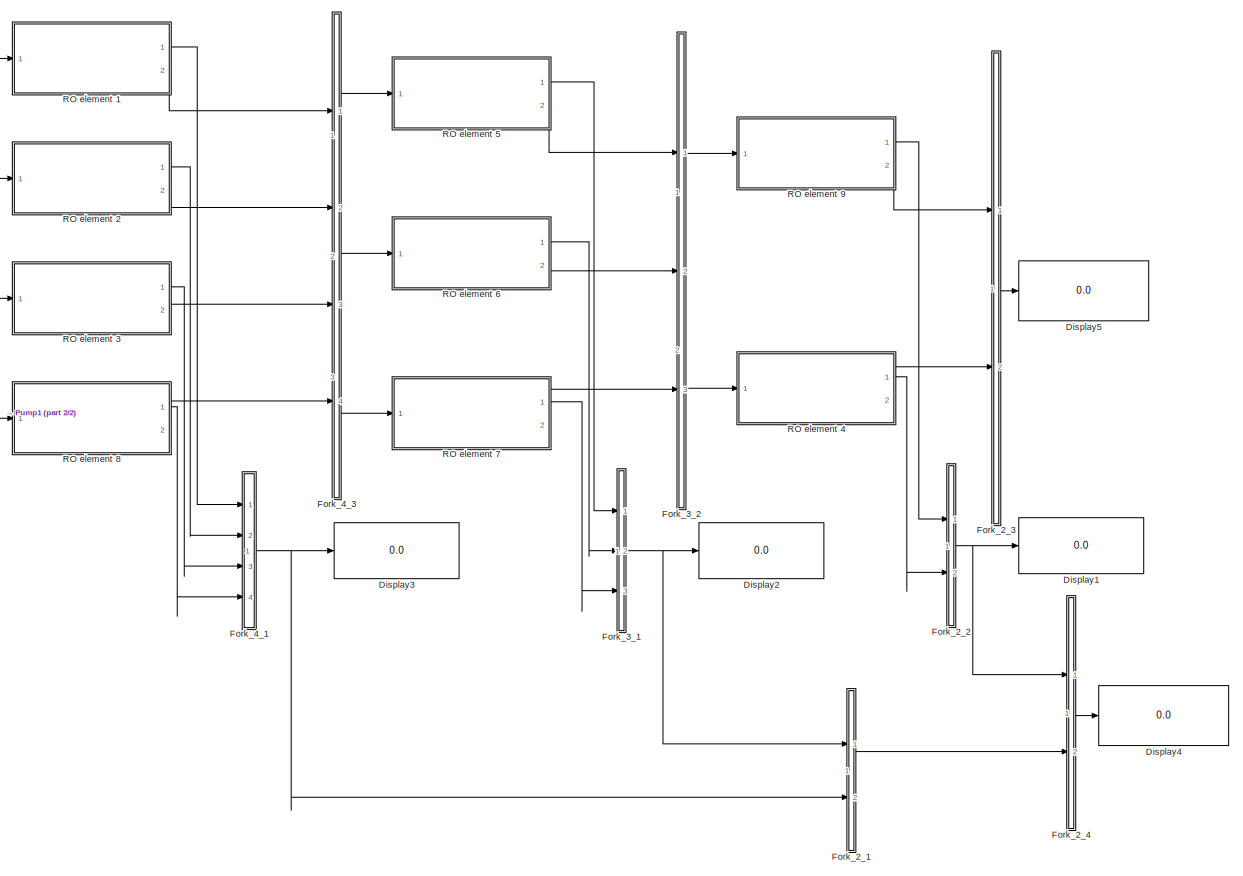
[diagram: root canvas - part 1/2, most of the canvas]
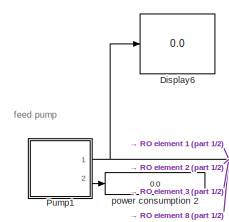
[diagram: root canvas - part 2/2, middle left region]
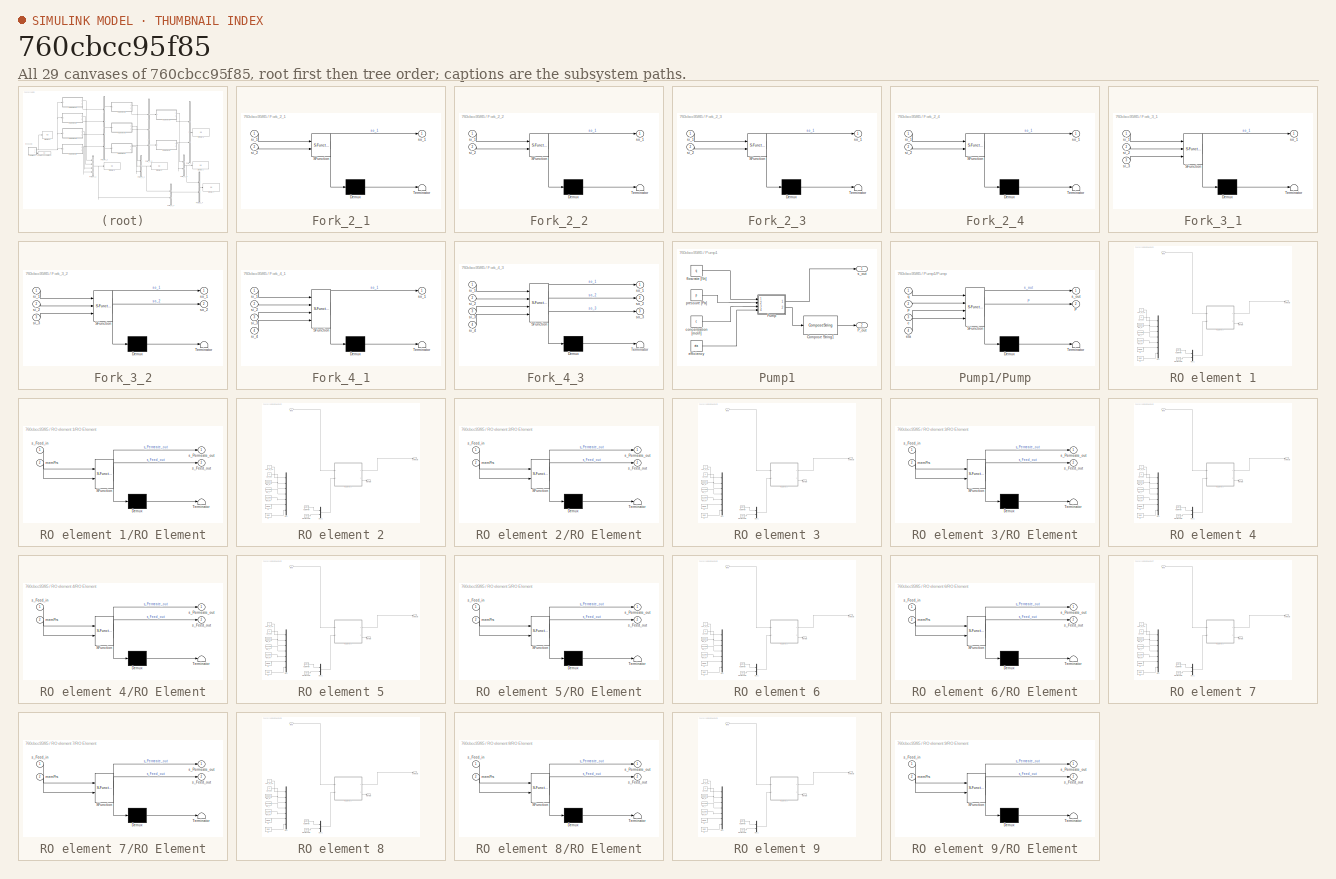
[diagram: thumbnail index - all 29 canvases of the model, root first then tree order]
MODEL slx_760cbcc95f85
KIND model
CONFIG AbsTol = auto
CONFIG EnableMultiTasking = off
CONFIG FixedStep = auto
CONFIG MaxStep = auto
CONFIG MinStep = auto
CONFIG RelTol = 1e-3
CONFIG SampleTimeConstraint = Unconstrained
CONFIG Solver = VariableStepAuto
CONFIG SolverName = VariableStepAuto
CONFIG StartTime = 0.0
CONFIG StopTime = 10.0
BLOCK [Display] Display1
  Decimation = 1
  Format = long
  Ports = [1]
BLOCK [Display] Display2
  Decimation = 1
  Format = long
  Ports = [1]
BLOCK [Display] Display3
  Decimation = 1
  Format = long
  Ports = [1]
BLOCK [Display] Display4
  Decimation = 1
  Format = long
  Ports = [1]
BLOCK [Display] Display5
  Decimation = 1
  Format = long
  Ports = [1]
BLOCK [Display] Display6
  Decimation = 1
  Ports = [1]
BLOCK [SubSystem] Fork_2_1
  ErrorFcn = Stateflow.Translate.translate
  PermitHierarchicalResolution = ExplicitOnly
  Ports = [2, 1]
  RequestExecContextInheritance = off
  SFBlockType = MATLAB Function
  TreatAsAtomicUnit = on
BLOCK [Demux] Fork_2_1/ Demux 
  Outputs = 1
  Ports = [1, 1]
BLOCK [S-Function] Fork_2_1/ SFunction 
  EnableBusSupport = on
  FunctionName = sf_sfun
  PortCounts = [2 2]
  Ports = [2, 2]
  SFcnIsStateOwnerBlock = off
  SFunctionDeploymentMode = off
  Tag = Stateflow S-Function ntw4_3_2 16
BLOCK [Terminator] Fork_2_1/ Terminator 
BLOCK [Inport] Fork_2_1/si_1
  IconDisplay = Port number
BLOCK [Inport] Fork_2_1/si_2
  IconDisplay = Port number
  Port = 2
BLOCK [Outport] Fork_2_1/so_1
  IconDisplay = Port number
BLOCK [SubSystem] Fork_2_2
  ErrorFcn = Stateflow.Translate.translate
  PermitHierarchicalResolution = ExplicitOnly
  Ports = [2, 1]
  RequestExecContextInheritance = off
  SFBlockType = MATLAB Function
  TreatAsAtomicUnit = on
BLOCK [Demux] Fork_2_2/ Demux 
  Outputs = 1
  Ports = [1, 1]
BLOCK [S-Function] Fork_2_2/ SFunction 
  EnableBusSupport = on
  FunctionName = sf_sfun
  PortCounts = [2 2]
  Ports = [2, 2]
  SFcnIsStateOwnerBlock = off
  SFunctionDeploymentMode = off
  Tag = Stateflow S-Function ntw4_3_2 17
BLOCK [Terminator] Fork_2_2/ Terminator 
BLOCK [Inport] Fork_2_2/si_1
  IconDisplay = Port number
BLOCK [Inport] Fork_2_2/si_2
  IconDisplay = Port number
  Port = 2
BLOCK [Outport] Fork_2_2/so_1
  IconDisplay = Port number
BLOCK [SubSystem] Fork_2_3
  ErrorFcn = Stateflow.Translate.translate
  PermitHierarchicalResolution = ExplicitOnly
  Ports = [2, 1]
  RequestExecContextInheritance = off
  SFBlockType = MATLAB Function
  TreatAsAtomicUnit = on
BLOCK [Demux] Fork_2_3/ Demux 
  Outputs = 1
  Ports = [1, 1]
BLOCK [S-Function] Fork_2_3/ SFunction 
  EnableBusSupport = on
  FunctionName = sf_sfun
  PortCounts = [2 2]
  Ports = [2, 2]
  SFcnIsStateOwnerBlock = off
  SFunctionDeploymentMode = off
  Tag = Stateflow S-Function ntw4_3_2 18
BLOCK [Terminator] Fork_2_3/ Terminator 
BLOCK [Inport] Fork_2_3/si_1
  IconDisplay = Port number
BLOCK [Inport] Fork_2_3/si_2
  IconDisplay = Port number
  Port = 2
BLOCK [Outport] Fork_2_3/so_1
  IconDisplay = Port number
BLOCK [SubSystem] Fork_2_4
  ErrorFcn = Stateflow.Translate.translate
  PermitHierarchicalResolution = ExplicitOnly
  Ports = [2, 1]
  RequestExecContextInheritance = off
  SFBlockType = MATLAB Function
  TreatAsAtomicUnit = on
BLOCK [Demux] Fork_2_4/ Demux 
  Outputs = 1
  Ports = [1, 1]
BLOCK [S-Function] Fork_2_4/ SFunction 
  EnableBusSupport = on
  FunctionName = sf_sfun
  PortCounts = [2 2]
  Ports = [2, 2]
  SFcnIsStateOwnerBlock = off
  SFunctionDeploymentMode = off
  Tag = Stateflow S-Function ntw4_3_2 19
BLOCK [Terminator] Fork_2_4/ Terminator 
BLOCK [Inport] Fork_2_4/si_1
  IconDisplay = Port number
BLOCK [Inport] Fork_2_4/si_2
  IconDisplay = Port number
  Port = 2
BLOCK [Outport] Fork_2_4/so_1
  IconDisplay = Port number
BLOCK [SubSystem] Fork_3_1
  ErrorFcn = Stateflow.Translate.translate
  PermitHierarchicalResolution = ExplicitOnly
  Ports = [3, 1]
  RequestExecContextInheritance = off
  SFBlockType = MATLAB Function
  TreatAsAtomicUnit = on
BLOCK [Demux] Fork_3_1/ Demux 
  Outputs = 1
  Ports = [1, 1]
BLOCK [S-Function] Fork_3_1/ SFunction 
  EnableBusSupport = on
  FunctionName = sf_sfun
  PortCounts = [3 2]
  Ports = [3, 2]
  SFcnIsStateOwnerBlock = off
  SFunctionDeploymentMode = off
  Tag = Stateflow S-Function ntw4_3_2 15
BLOCK [Terminator] Fork_3_1/ Terminator 
BLOCK [Inport] Fork_3_1/si_1
  IconDisplay = Port number
BLOCK [Inport] Fork_3_1/si_2
  IconDisplay = Port number
  Port = 2
BLOCK [Inport] Fork_3_1/si_3
  IconDisplay = Port number
  Port = 3
BLOCK [Outport] Fork_3_1/so_1
  IconDisplay = Port number
BLOCK [SubSystem] Fork_3_2
  ErrorFcn = Stateflow.Translate.translate
  PermitHierarchicalResolution = ExplicitOnly
  Ports = [3, 2]
  RequestExecContextInheritance = off
  SFBlockType = MATLAB Function
  TreatAsAtomicUnit = on
BLOCK [Demux] Fork_3_2/ Demux 
  Outputs = 1
  Ports = [1, 1]
BLOCK [S-Function] Fork_3_2/ SFunction 
  EnableBusSupport = on
  FunctionName = sf_sfun
  PortCounts = [3 3]
  Ports = [3, 3]
  SFcnIsStateOwnerBlock = off
  SFunctionDeploymentMode = off
  Tag = Stateflow S-Function ntw4_3_2 14
BLOCK [Terminator] Fork_3_2/ Terminator 
BLOCK [Inport] Fork_3_2/si_1
  IconDisplay = Port number
BLOCK [Inport] Fork_3_2/si_2
  IconDisplay = Port number
  Port = 2
BLOCK [Inport] Fork_3_2/si_3
  IconDisplay = Port number
  Port = 3
BLOCK [Outport] Fork_3_2/so_1
  IconDisplay = Port number
BLOCK [Outport] Fork_3_2/so_2
  IconDisplay = Port number
  Port = 2
BLOCK [SubSystem] Fork_4_1
  ErrorFcn = Stateflow.Translate.translate
  PermitHierarchicalResolution = ExplicitOnly
  Ports = [4, 1]
  RequestExecContextInheritance = off
  SFBlockType = MATLAB Function
  TreatAsAtomicUnit = on
BLOCK [Demux] Fork_4_1/ Demux 
  Outputs = 1
  Ports = [1, 1]
BLOCK [S-Function] Fork_4_1/ SFunction 
  EnableBusSupport = on
  FunctionName = sf_sfun
  PortCounts = [4 2]
  Ports = [4, 2]
  SFcnIsStateOwnerBlock = off
  SFunctionDeploymentMode = off
  Tag = Stateflow S-Function ntw4_3_2 8
BLOCK [Terminator] Fork_4_1/ Terminator 
BLOCK [Inport] Fork_4_1/si_1
  IconDisplay = Port number
BLOCK [Inport] Fork_4_1/si_2
  IconDisplay = Port number
  Port = 2
BLOCK [Inport] Fork_4_1/si_3
  IconDisplay = Port number
  Port = 3
BLOCK [Inport] Fork_4_1/si_4
  IconDisplay = Port number
  Port = 4
BLOCK [Outport] Fork_4_1/so_1
  IconDisplay = Port number
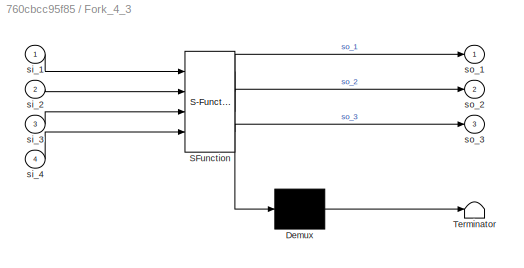
BLOCK [SubSystem] Fork_4_3 
  ErrorFcn = Stateflow.Translate.translate
  PermitHierarchicalResolution = ExplicitOnly
  Ports = [4, 3]
  RequestExecContextInheritance = off
  SFBlockType = MATLAB Function
  TreatAsAtomicUnit = on
BLOCK [Demux] Fork_4_3 / Demux 
  Outputs = 1
  Ports = [1, 1]
BLOCK [S-Function] Fork_4_3 / SFunction 
  EnableBusSupport = on
  FunctionName = sf_sfun
  PortCounts = [4 4]
  Ports = [4, 4]
  SFcnIsStateOwnerBlock = off
  SFunctionDeploymentMode = off
  Tag = Stateflow S-Function ntw4_3_2 9
BLOCK [Terminator] Fork_4_3 / Terminator 
BLOCK [Inport] Fork_4_3 /si_1
  IconDisplay = Port number
BLOCK [Inport] Fork_4_3 /si_2
  IconDisplay = Port number
  Port = 2
BLOCK [Inport] Fork_4_3 /si_3
  IconDisplay = Port number
  Port = 3
BLOCK [Inport] Fork_4_3 /si_4
  IconDisplay = Port number
  Port = 4
BLOCK [Outport] Fork_4_3 /so_1
  IconDisplay = Port number
BLOCK [Outport] Fork_4_3 /so_2
  IconDisplay = Port number
  Port = 2
BLOCK [Outport] Fork_4_3 /so_3
  IconDisplay = Port number
  Port = 3
BLOCK [SubSystem] Pump1
  Ports = [0, 2]
  RequestExecContextInheritance = off
BLOCK [ComposeString] Pump1/Compose String1
  Format = 'P = %.3f kW'
  Ports = [1, 1]
BLOCK [Outport] Pump1/P_out
  IconDisplay = Port number
  Port = 2
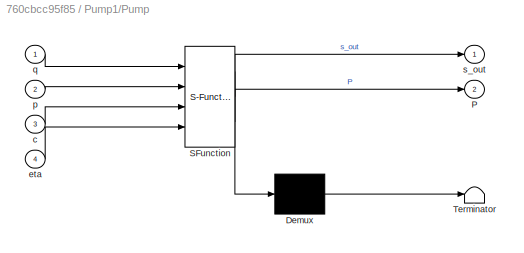
BLOCK [SubSystem] Pump1/Pump
  ErrorFcn = Stateflow.Translate.translate
  PermitHierarchicalResolution = ExplicitOnly
  Ports = [4, 2]
  RequestExecContextInheritance = off
  SFBlockType = MATLAB Function
  TreatAsAtomicUnit = on
BLOCK [Demux] Pump1/Pump/ Demux 
  Outputs = 1
  Ports = [1, 1]
BLOCK [S-Function] Pump1/Pump/ SFunction 
  EnableBusSupport = on
  FunctionName = sf_sfun
  PortCounts = [4 3]
  Ports = [4, 3]
  SFcnIsStateOwnerBlock = off
  SFunctionDeploymentMode = off
  Tag = Stateflow S-Function ntw4_3_2 3
BLOCK [Terminator] Pump1/Pump/ Terminator 
BLOCK [Outport] Pump1/Pump/P
  IconDisplay = Port number
  Port = 2
BLOCK [Inport] Pump1/Pump/c
  IconDisplay = Port number
  Port = 3
BLOCK [Inport] Pump1/Pump/eta
  IconDisplay = Port number
  Port = 4
BLOCK [Inport] Pump1/Pump/p
  IconDisplay = Port number
  Port = 2
BLOCK [Inport] Pump1/Pump/q
  IconDisplay = Port number
BLOCK [Outport] Pump1/Pump/s_out
  IconDisplay = Port number
BLOCK [Constant] Pump1/concentration [mol//l]
  Value = c
BLOCK [Constant] Pump1/efficiency
  Value = eta
BLOCK [Constant] Pump1/flow rate [l\h]
  Value = q
BLOCK [Constant] Pump1/pressure [Pa]
  Value = p
BLOCK [Outport] Pump1/s_out
  IconDisplay = Port number
BLOCK [SubSystem] RO element 1
  Ports = [1, 2]
  RequestExecContextInheritance = off
BLOCK [Mux] RO element 1/Mux
  Commented = on
  DisplayOption = bar
  Inputs = 7
  Ports = [7, 1]
BLOCK [Mux] RO element 1/Mux1
  DisplayOption = bar
  Inputs = 2
  Ports = [2, 1]
BLOCK [SubSystem] RO element 1/RO Element
  ErrorFcn = Stateflow.Translate.translate
  PermitHierarchicalResolution = ExplicitOnly
  Ports = [2, 2]
  RequestExecContextInheritance = off
  SFBlockType = MATLAB Function
  TreatAsAtomicUnit = on
BLOCK [Demux] RO element 1/RO Element/ Demux 
  Outputs = 1
  Ports = [1, 1]
BLOCK [S-Function] RO element 1/RO Element/ SFunction 
  EnableBusSupport = on
  FunctionName = sf_sfun
  PortCounts = [2 3]
  Ports = [2, 3]
  SFcnIsStateOwnerBlock = off
  SFunctionDeploymentMode = off
  Tag = Stateflow S-Function ntw4_3_2 1
BLOCK [Terminator] RO element 1/RO Element/ Terminator 
BLOCK [Inport] RO element 1/RO Element/memPrs
  IconDisplay = Port number
  Port = 2
BLOCK [Inport] RO element 1/RO Element/s_Feed_in
  IconDisplay = Port number
BLOCK [Outport] RO element 1/RO Element/s_Feed_out
  IconDisplay = Port number
  Port = 2
BLOCK [Outport] RO element 1/RO Element/s_Permeate_out
  IconDisplay = Port number
BLOCK [Inport] RO element 1/feed
  IconDisplay = Port number
BLOCK [Constant] RO element 1/np_sht
  Commented = on
  Value = 20
BLOCK [Outport] RO element 1/permeate
  IconDisplay = Port number
BLOCK [Constant] RO element 1/r1
  Commented = on
  Value = 2.5e-2
BLOCK [Constant] RO element 1/r2
  Commented = on
  Value = 9e-2
BLOCK [Constant] RO element 1/rejectionRate
  Value = Value
BLOCK [Outport] RO element 1/retentate
  IconDisplay = Port number
  Port = 2
BLOCK [Constant] RO element 1/spc_d_uc
  Commented = on
  Value = 3
BLOCK [Constant] RO element 1/thk_f
  Commented = on
  Value = 0.711e-3
BLOCK [Constant] RO element 1/thk_m
  Commented = on
  Value = 0.11e-3
BLOCK [Constant] RO element 1/thk_p
  Commented = on
  Value = 0.25e-3
BLOCK [Constant] RO element 1/waterPerm
  Value = waterPerm
BLOCK [SubSystem] RO element 2
  Ports = [1, 2]
  RequestExecContextInheritance = off
BLOCK [Mux] RO element 2/Mux
  Commented = on
  DisplayOption = bar
  Inputs = 7
  Ports = [7, 1]
BLOCK [Mux] RO element 2/Mux1
  DisplayOption = bar
  Inputs = 2
  Ports = [2, 1]
BLOCK [SubSystem] RO element 2/RO Element
  ErrorFcn = Stateflow.Translate.translate
  PermitHierarchicalResolution = ExplicitOnly
  Ports = [2, 2]
  RequestExecContextInheritance = off
  SFBlockType = MATLAB Function
  TreatAsAtomicUnit = on
BLOCK [Demux] RO element 2/RO Element/ Demux 
  Outputs = 1
  Ports = [1, 1]
BLOCK [S-Function] RO element 2/RO Element/ SFunction 
  EnableBusSupport = on
  FunctionName = sf_sfun
  PortCounts = [2 3]
  Ports = [2, 3]
  SFcnIsStateOwnerBlock = off
  SFunctionDeploymentMode = off
  Tag = Stateflow S-Function ntw4_3_2 2
BLOCK [Terminator] RO element 2/RO Element/ Terminator 
BLOCK [Inport] RO element 2/RO Element/memPrs
  IconDisplay = Port number
  Port = 2
BLOCK [Inport] RO element 2/RO Element/s_Feed_in
  IconDisplay = Port number
BLOCK [Outport] RO element 2/RO Element/s_Feed_out
  IconDisplay = Port number
  Port = 2
BLOCK [Outport] RO element 2/RO Element/s_Permeate_out
  IconDisplay = Port number
BLOCK [Inport] RO element 2/feed
  IconDisplay = Port number
BLOCK [Constant] RO element 2/np_sht
  Commented = on
  Value = 20
BLOCK [Outport] RO element 2/permeate
  IconDisplay = Port number
BLOCK [Constant] RO element 2/r1
  Commented = on
  Value = 2.5e-2
BLOCK [Constant] RO element 2/r2
  Commented = on
  Value = 9e-2
BLOCK [Constant] RO element 2/rejectionRate
  Value = Value
BLOCK [Outport] RO element 2/retentate
  IconDisplay = Port number
  Port = 2
BLOCK [Constant] RO element 2/spc_d_uc
  Commented = on
  Value = 3
BLOCK [Constant] RO element 2/thk_f
  Commented = on
  Value = 0.711e-3
BLOCK [Constant] RO element 2/thk_m
  Commented = on
  Value = 0.11e-3
BLOCK [Constant] RO element 2/thk_p
  Commented = on
  Value = 0.25e-3
BLOCK [Constant] RO element 2/waterPerm
  Value = waterPerm
BLOCK [SubSystem] RO element 3
  Ports = [1, 2]
  RequestExecContextInheritance = off
BLOCK [Mux] RO element 3/Mux
  Commented = on
  DisplayOption = bar
  Inputs = 7
  Ports = [7, 1]
BLOCK [Mux] RO element 3/Mux1
  DisplayOption = bar
  Inputs = 2
  Ports = [2, 1]
BLOCK [SubSystem] RO element 3/RO Element
  ErrorFcn = Stateflow.Translate.translate
  PermitHierarchicalResolution = ExplicitOnly
  Ports = [2, 2]
  RequestExecContextInheritance = off
  SFBlockType = MATLAB Function
  TreatAsAtomicUnit = on
BLOCK [Demux] RO element 3/RO Element/ Demux 
  Outputs = 1
  Ports = [1, 1]
BLOCK [S-Function] RO element 3/RO Element/ SFunction 
  EnableBusSupport = on
  FunctionName = sf_sfun
  PortCounts = [2 3]
  Ports = [2, 3]
  SFcnIsStateOwnerBlock = off
  SFunctionDeploymentMode = off
  Tag = Stateflow S-Function ntw4_3_2 4
BLOCK [Terminator] RO element 3/RO Element/ Terminator 
BLOCK [Inport] RO element 3/RO Element/memPrs
  IconDisplay = Port number
  Port = 2
BLOCK [Inport] RO element 3/RO Element/s_Feed_in
  IconDisplay = Port number
BLOCK [Outport] RO element 3/RO Element/s_Feed_out
  IconDisplay = Port number
  Port = 2
BLOCK [Outport] RO element 3/RO Element/s_Permeate_out
  IconDisplay = Port number
BLOCK [Inport] RO element 3/feed
  IconDisplay = Port number
BLOCK [Constant] RO element 3/np_sht
  Commented = on
  Value = 20
BLOCK [Outport] RO element 3/permeate
  IconDisplay = Port number
BLOCK [Constant] RO element 3/r1
  Commented = on
  Value = 2.5e-2
BLOCK [Constant] RO element 3/r2
  Commented = on
  Value = 9e-2
BLOCK [Constant] RO element 3/rejectionRate
  Value = Value
BLOCK [Outport] RO element 3/retentate
  IconDisplay = Port number
  Port = 2
BLOCK [Constant] RO element 3/spc_d_uc
  Commented = on
  Value = 3
BLOCK [Constant] RO element 3/thk_f
  Commented = on
  Value = 0.711e-3
BLOCK [Constant] RO element 3/thk_m
  Commented = on
  Value = 0.11e-3
BLOCK [Constant] RO element 3/thk_p
  Commented = on
  Value = 0.25e-3
BLOCK [Constant] RO element 3/waterPerm
  Value = waterPerm
BLOCK [SubSystem] RO element 4
  Ports = [1, 2]
  RequestExecContextInheritance = off
BLOCK [Mux] RO element 4/Mux
  Commented = on
  DisplayOption = bar
  Inputs = 7
  Ports = [7, 1]
BLOCK [Mux] RO element 4/Mux1
  DisplayOption = bar
  Inputs = 2
  Ports = [2, 1]
BLOCK [SubSystem] RO element 4/RO Element
  ErrorFcn = Stateflow.Translate.translate
  PermitHierarchicalResolution = ExplicitOnly
  Ports = [2, 2]
  RequestExecContextInheritance = off
  SFBlockType = MATLAB Function
  TreatAsAtomicUnit = on
BLOCK [Demux] RO element 4/RO Element/ Demux 
  Outputs = 1
  Ports = [1, 1]
BLOCK [S-Function] RO element 4/RO Element/ SFunction 
  EnableBusSupport = on
  FunctionName = sf_sfun
  PortCounts = [2 3]
  Ports = [2, 3]
  SFcnIsStateOwnerBlock = off
  SFunctionDeploymentMode = off
  Tag = Stateflow S-Function ntw4_3_2 7
BLOCK [Terminator] RO element 4/RO Element/ Terminator 
BLOCK [Inport] RO element 4/RO Element/memPrs
  IconDisplay = Port number
  Port = 2
BLOCK [Inport] RO element 4/RO Element/s_Feed_in
  IconDisplay = Port number
BLOCK [Outport] RO element 4/RO Element/s_Feed_out
  IconDisplay = Port number
  Port = 2
BLOCK [Outport] RO element 4/RO Element/s_Permeate_out
  IconDisplay = Port number
BLOCK [Inport] RO element 4/feed
  IconDisplay = Port number
BLOCK [Constant] RO element 4/np_sht
  Commented = on
  Value = 20
BLOCK [Outport] RO element 4/permeate
  IconDisplay = Port number
BLOCK [Constant] RO element 4/r1
  Commented = on
  Value = 2.5e-2
BLOCK [Constant] RO element 4/r2
  Commented = on
  Value = 9e-2
BLOCK [Constant] RO element 4/rejectionRate
  Value = Value
BLOCK [Outport] RO element 4/retentate
  IconDisplay = Port number
  Port = 2
BLOCK [Constant] RO element 4/spc_d_uc
  Commented = on
  Value = 3
BLOCK [Constant] RO element 4/thk_f
  Commented = on
  Value = 0.711e-3
BLOCK [Constant] RO element 4/thk_m
  Commented = on
  Value = 0.11e-3
BLOCK [Constant] RO element 4/thk_p
  Commented = on
  Value = 0.25e-3
BLOCK [Constant] RO element 4/waterPerm
  Value = waterPerm
BLOCK [SubSystem] RO element 5
  Ports = [1, 2]
  RequestExecContextInheritance = off
BLOCK [Mux] RO element 5/Mux
  Commented = on
  DisplayOption = bar
  Inputs = 7
  Ports = [7, 1]
BLOCK [Mux] RO element 5/Mux1
  DisplayOption = bar
  Inputs = 2
  Ports = [2, 1]
BLOCK [SubSystem] RO element 5/RO Element
  ErrorFcn = Stateflow.Translate.translate
  PermitHierarchicalResolution = ExplicitOnly
  Ports = [2, 2]
  RequestExecContextInheritance = off
  SFBlockType = MATLAB Function
  TreatAsAtomicUnit = on
BLOCK [Demux] RO element 5/RO Element/ Demux 
  Outputs = 1
  Ports = [1, 1]
BLOCK [S-Function] RO element 5/RO Element/ SFunction 
  EnableBusSupport = on
  FunctionName = sf_sfun
  PortCounts = [2 3]
  Ports = [2, 3]
  SFcnIsStateOwnerBlock = off
  SFunctionDeploymentMode = off
  Tag = Stateflow S-Function ntw4_3_2 10
BLOCK [Terminator] RO element 5/RO Element/ Terminator 
BLOCK [Inport] RO element 5/RO Element/memPrs
  IconDisplay = Port number
  Port = 2
BLOCK [Inport] RO element 5/RO Element/s_Feed_in
  IconDisplay = Port number
BLOCK [Outport] RO element 5/RO Element/s_Feed_out
  IconDisplay = Port number
  Port = 2
BLOCK [Outport] RO element 5/RO Element/s_Permeate_out
  IconDisplay = Port number
BLOCK [Inport] RO element 5/feed
  IconDisplay = Port number
BLOCK [Constant] RO element 5/np_sht
  Commented = on
  Value = 20
BLOCK [Outport] RO element 5/permeate
  IconDisplay = Port number
BLOCK [Constant] RO element 5/r1
  Commented = on
  Value = 2.5e-2
BLOCK [Constant] RO element 5/r2
  Commented = on
  Value = 9e-2
BLOCK [Constant] RO element 5/rejectionRate
  Value = Value
BLOCK [Outport] RO element 5/retentate
  IconDisplay = Port number
  Port = 2
BLOCK [Constant] RO element 5/spc_d_uc
  Commented = on
  Value = 3
BLOCK [Constant] RO element 5/thk_f
  Commented = on
  Value = 0.711e-3
BLOCK [Constant] RO element 5/thk_m
  Commented = on
  Value = 0.11e-3
BLOCK [Constant] RO element 5/thk_p
  Commented = on
  Value = 0.25e-3
BLOCK [Constant] RO element 5/waterPerm
  Value = waterPerm
BLOCK [SubSystem] RO element 6
  Ports = [1, 2]
  RequestExecContextInheritance = off
BLOCK [Mux] RO element 6/Mux
  Commented = on
  DisplayOption = bar
  Inputs = 7
  Ports = [7, 1]
BLOCK [Mux] RO element 6/Mux1
  DisplayOption = bar
  Inputs = 2
  Ports = [2, 1]
BLOCK [SubSystem] RO element 6/RO Element
  ErrorFcn = Stateflow.Translate.translate
  PermitHierarchicalResolution = ExplicitOnly
  Ports = [2, 2]
  RequestExecContextInheritance = off
  SFBlockType = MATLAB Function
  TreatAsAtomicUnit = on
BLOCK [Demux] RO element 6/RO Element/ Demux 
  Outputs = 1
  Ports = [1, 1]
BLOCK [S-Function] RO element 6/RO Element/ SFunction 
  EnableBusSupport = on
  FunctionName = sf_sfun
  PortCounts = [2 3]
  Ports = [2, 3]
  SFcnIsStateOwnerBlock = off
  SFunctionDeploymentMode = off
  Tag = Stateflow S-Function ntw4_3_2 11
BLOCK [Terminator] RO element 6/RO Element/ Terminator 
BLOCK [Inport] RO element 6/RO Element/memPrs
  IconDisplay = Port number
  Port = 2
BLOCK [Inport] RO element 6/RO Element/s_Feed_in
  IconDisplay = Port number
BLOCK [Outport] RO element 6/RO Element/s_Feed_out
  IconDisplay = Port number
  Port = 2
BLOCK [Outport] RO element 6/RO Element/s_Permeate_out
  IconDisplay = Port number
BLOCK [Inport] RO element 6/feed
  IconDisplay = Port number
BLOCK [Constant] RO element 6/np_sht
  Commented = on
  Value = 20
BLOCK [Outport] RO element 6/permeate
  IconDisplay = Port number
BLOCK [Constant] RO element 6/r1
  Commented = on
  Value = 2.5e-2
BLOCK [Constant] RO element 6/r2
  Commented = on
  Value = 9e-2
BLOCK [Constant] RO element 6/rejectionRate
  Value = Value
BLOCK [Outport] RO element 6/retentate
  IconDisplay = Port number
  Port = 2
BLOCK [Constant] RO element 6/spc_d_uc
  Commented = on
  Value = 3
BLOCK [Constant] RO element 6/thk_f
  Commented = on
  Value = 0.711e-3
BLOCK [Constant] RO element 6/thk_m
  Commented = on
  Value = 0.11e-3
BLOCK [Constant] RO element 6/thk_p
  Commented = on
  Value = 0.25e-3
BLOCK [Constant] RO element 6/waterPerm
  Value = waterPerm
BLOCK [SubSystem] RO element 7
  Ports = [1, 2]
  RequestExecContextInheritance = off
BLOCK [Mux] RO element 7/Mux
  Commented = on
  DisplayOption = bar
  Inputs = 7
  Ports = [7, 1]
BLOCK [Mux] RO element 7/Mux1
  DisplayOption = bar
  Inputs = 2
  Ports = [2, 1]
BLOCK [SubSystem] RO element 7/RO Element
  ErrorFcn = Stateflow.Translate.translate
  PermitHierarchicalResolution = ExplicitOnly
  Ports = [2, 2]
  RequestExecContextInheritance = off
  SFBlockType = MATLAB Function
  TreatAsAtomicUnit = on
BLOCK [Demux] RO element 7/RO Element/ Demux 
  Outputs = 1
  Ports = [1, 1]
BLOCK [S-Function] RO element 7/RO Element/ SFunction 
  EnableBusSupport = on
  FunctionName = sf_sfun
  PortCounts = [2 3]
  Ports = [2, 3]
  SFcnIsStateOwnerBlock = off
  SFunctionDeploymentMode = off
  Tag = Stateflow S-Function ntw4_3_2 12
BLOCK [Terminator] RO element 7/RO Element/ Terminator 
BLOCK [Inport] RO element 7/RO Element/memPrs
  IconDisplay = Port number
  Port = 2
BLOCK [Inport] RO element 7/RO Element/s_Feed_in
  IconDisplay = Port number
BLOCK [Outport] RO element 7/RO Element/s_Feed_out
  IconDisplay = Port number
  Port = 2
BLOCK [Outport] RO element 7/RO Element/s_Permeate_out
  IconDisplay = Port number
BLOCK [Inport] RO element 7/feed
  IconDisplay = Port number
BLOCK [Constant] RO element 7/np_sht
  Commented = on
  Value = 20
BLOCK [Outport] RO element 7/permeate
  IconDisplay = Port number
BLOCK [Constant] RO element 7/r1
  Commented = on
  Value = 2.5e-2
BLOCK [Constant] RO element 7/r2
  Commented = on
  Value = 9e-2
BLOCK [Constant] RO element 7/rejectionRate
  Value = Value
BLOCK [Outport] RO element 7/retentate
  IconDisplay = Port number
  Port = 2
BLOCK [Constant] RO element 7/spc_d_uc
  Commented = on
  Value = 3
BLOCK [Constant] RO element 7/thk_f
  Commented = on
  Value = 0.711e-3
BLOCK [Constant] RO element 7/thk_m
  Commented = on
  Value = 0.11e-3
BLOCK [Constant] RO element 7/thk_p
  Commented = on
  Value = 0.25e-3
BLOCK [Constant] RO element 7/waterPerm
  Value = waterPerm
BLOCK [SubSystem] RO element 8
  Ports = [1, 2]
  RequestExecContextInheritance = off
BLOCK [Mux] RO element 8/Mux
  Commented = on
  DisplayOption = bar
  Inputs = 7
  Ports = [7, 1]
BLOCK [Mux] RO element 8/Mux1
  DisplayOption = bar
  Inputs = 2
  Ports = [2, 1]
BLOCK [SubSystem] RO element 8/RO Element
  ErrorFcn = Stateflow.Translate.translate
  PermitHierarchicalResolution = ExplicitOnly
  Ports = [2, 2]
  RequestExecContextInheritance = off
  SFBlockType = MATLAB Function
  TreatAsAtomicUnit = on
BLOCK [Demux] RO element 8/RO Element/ Demux 
  Outputs = 1
  Ports = [1, 1]
BLOCK [S-Function] RO element 8/RO Element/ SFunction 
  EnableBusSupport = on
  FunctionName = sf_sfun
  PortCounts = [2 3]
  Ports = [2, 3]
  SFcnIsStateOwnerBlock = off
  SFunctionDeploymentMode = off
  Tag = Stateflow S-Function ntw4_3_2 6
BLOCK [Terminator] RO element 8/RO Element/ Terminator 
BLOCK [Inport] RO element 8/RO Element/memPrs
  IconDisplay = Port number
  Port = 2
BLOCK [Inport] RO element 8/RO Element/s_Feed_in
  IconDisplay = Port number
BLOCK [Outport] RO element 8/RO Element/s_Feed_out
  IconDisplay = Port number
  Port = 2
BLOCK [Outport] RO element 8/RO Element/s_Permeate_out
  IconDisplay = Port number
BLOCK [Inport] RO element 8/feed
  IconDisplay = Port number
BLOCK [Constant] RO element 8/np_sht
  Commented = on
  Value = 20
BLOCK [Outport] RO element 8/permeate
  IconDisplay = Port number
BLOCK [Constant] RO element 8/r1
  Commented = on
  Value = 2.5e-2
BLOCK [Constant] RO element 8/r2
  Commented = on
  Value = 9e-2
BLOCK [Constant] RO element 8/rejectionRate
  Value = Value
BLOCK [Outport] RO element 8/retentate
  IconDisplay = Port number
  Port = 2
BLOCK [Constant] RO element 8/spc_d_uc
  Commented = on
  Value = 3
BLOCK [Constant] RO element 8/thk_f
  Commented = on
  Value = 0.711e-3
BLOCK [Constant] RO element 8/thk_m
  Commented = on
  Value = 0.11e-3
BLOCK [Constant] RO element 8/thk_p
  Commented = on
  Value = 0.25e-3
BLOCK [Constant] RO element 8/waterPerm
  Value = waterPerm
BLOCK [SubSystem] RO element 9
  Ports = [1, 2]
  RequestExecContextInheritance = off
BLOCK [Mux] RO element 9/Mux
  Commented = on
  DisplayOption = bar
  Inputs = 7
  Ports = [7, 1]
BLOCK [Mux] RO element 9/Mux1
  DisplayOption = bar
  Inputs = 2
  Ports = [2, 1]
BLOCK [SubSystem] RO element 9/RO Element
  ErrorFcn = Stateflow.Translate.translate
  PermitHierarchicalResolution = ExplicitOnly
  Ports = [2, 2]
  RequestExecContextInheritance = off
  SFBlockType = MATLAB Function
  TreatAsAtomicUnit = on
BLOCK [Demux] RO element 9/RO Element/ Demux 
  Outputs = 1
  Ports = [1, 1]
BLOCK [S-Function] RO element 9/RO Element/ SFunction 
  EnableBusSupport = on
  FunctionName = sf_sfun
  PortCounts = [2 3]
  Ports = [2, 3]
  SFcnIsStateOwnerBlock = off
  SFunctionDeploymentMode = off
  Tag = Stateflow S-Function ntw4_3_2 5
BLOCK [Terminator] RO element 9/RO Element/ Terminator 
BLOCK [Inport] RO element 9/RO Element/memPrs
  IconDisplay = Port number
  Port = 2
BLOCK [Inport] RO element 9/RO Element/s_Feed_in
  IconDisplay = Port number
BLOCK [Outport] RO element 9/RO Element/s_Feed_out
  IconDisplay = Port number
  Port = 2
BLOCK [Outport] RO element 9/RO Element/s_Permeate_out
  IconDisplay = Port number
BLOCK [Inport] RO element 9/feed
  IconDisplay = Port number
BLOCK [Constant] RO element 9/np_sht
  Commented = on
  Value = 20
BLOCK [Outport] RO element 9/permeate
  IconDisplay = Port number
BLOCK [Constant] RO element 9/r1
  Commented = on
  Value = 2.5e-2
BLOCK [Constant] RO element 9/r2
  Commented = on
  Value = 9e-2
BLOCK [Constant] RO element 9/rejectionRate
  Value = Value
BLOCK [Outport] RO element 9/retentate
  IconDisplay = Port number
  Port = 2
BLOCK [Constant] RO element 9/spc_d_uc
  Commented = on
  Value = 3
BLOCK [Constant] RO element 9/thk_f
  Commented = on
  Value = 0.711e-3
BLOCK [Constant] RO element 9/thk_m
  Commented = on
  Value = 0.11e-3
BLOCK [Constant] RO element 9/thk_p
  Commented = on
  Value = 0.25e-3
BLOCK [Constant] RO element 9/waterPerm
  Value = waterPerm
BLOCK [Display] power consumption 2
  Decimation = 1
  Ports = [1]
ANNOTATION (root): feed pump
LINE Fork_2_1:1 -> Fork_2_4:2
NET Fork_2_2:1 -> Display1:1, Fork_2_4:1
LINE Fork_2_3:1 -> Display5:1
LINE Fork_2_4:1 -> Display4:1
NET Fork_3_1:1 -> Display2:1, Fork_2_1:1
LINE Fork_3_2:1 -> RO element 9:1
LINE Fork_3_2:2 -> RO element 4:1
NET Fork_4_1:1 -> Display3:1, Fork_2_1:2
LINE Fork_4_3 :1 -> RO element 5:1
LINE Fork_4_3 :2 -> RO element 6:1
LINE Fork_4_3 :3 -> RO element 7:1
LINE Pump1/Compose String1:1 -> Pump1/P_out:1
LINE Pump1/Pump:1 -> Pump1/s_out:1
LINE Pump1/Pump:2 -> Pump1/Compose String1:1
LINE Pump1/concentration [mol//l]:1 -> Pump1/Pump:3
LINE Pump1/efficiency:1 -> Pump1/Pump:4
LINE Pump1/flow rate [l\h]:1 -> Pump1/Pump:1
LINE Pump1/pressure [Pa]:1 -> Pump1/Pump:2
NET Pump1:1 -> Display6:1, RO element 1:1, RO element 2:1, RO element 3:1, RO element 8:1
LINE Pump1:2 -> power consumption 2:1
LINE RO element 1/Mux1:1 -> RO element 1/RO Element:2
LINE RO element 1/RO Element:1 -> RO element 1/permeate:1
LINE RO element 1/RO Element:2 -> RO element 1/retentate:1
LINE RO element 1/feed:1 -> RO element 1/RO Element:1
LINE RO element 1/np_sht:1 -> RO element 1/Mux:2
LINE RO element 1/r1:1 -> RO element 1/Mux:6
LINE RO element 1/r2:1 -> RO element 1/Mux:7
LINE RO element 1/rejectionRate:1 -> RO element 1/Mux1:2
LINE RO element 1/spc_d_uc:1 -> RO element 1/Mux:1
LINE RO element 1/thk_f:1 -> RO element 1/Mux:4
LINE RO element 1/thk_m:1 -> RO element 1/Mux:5
LINE RO element 1/thk_p:1 -> RO element 1/Mux:3
LINE RO element 1/waterPerm:1 -> RO element 1/Mux1:1
LINE RO element 1:1 -> Fork_4_1:1
LINE RO element 1:2 -> Fork_4_3 :1
LINE RO element 2/Mux1:1 -> RO element 2/RO Element:2
LINE RO element 2/RO Element:1 -> RO element 2/permeate:1
LINE RO element 2/RO Element:2 -> RO element 2/retentate:1
LINE RO element 2/feed:1 -> RO element 2/RO Element:1
LINE RO element 2/np_sht:1 -> RO element 2/Mux:2
LINE RO element 2/r1:1 -> RO element 2/Mux:6
LINE RO element 2/r2:1 -> RO element 2/Mux:7
LINE RO element 2/rejectionRate:1 -> RO element 2/Mux1:2
LINE RO element 2/spc_d_uc:1 -> RO element 2/Mux:1
LINE RO element 2/thk_f:1 -> RO element 2/Mux:4
LINE RO element 2/thk_m:1 -> RO element 2/Mux:5
LINE RO element 2/thk_p:1 -> RO element 2/Mux:3
LINE RO element 2/waterPerm:1 -> RO element 2/Mux1:1
LINE RO element 2:1 -> Fork_4_1:2
LINE RO element 2:2 -> Fork_4_3 :2
LINE RO element 3/Mux1:1 -> RO element 3/RO Element:2
LINE RO element 3/RO Element:1 -> RO element 3/permeate:1
LINE RO element 3/RO Element:2 -> RO element 3/retentate:1
LINE RO element 3/feed:1 -> RO element 3/RO Element:1
LINE RO element 3/np_sht:1 -> RO element 3/Mux:2
LINE RO element 3/r1:1 -> RO element 3/Mux:6
LINE RO element 3/r2:1 -> RO element 3/Mux:7
LINE RO element 3/rejectionRate:1 -> RO element 3/Mux1:2
LINE RO element 3/spc_d_uc:1 -> RO element 3/Mux:1
LINE RO element 3/thk_f:1 -> RO element 3/Mux:4
LINE RO element 3/thk_m:1 -> RO element 3/Mux:5
LINE RO element 3/thk_p:1 -> RO element 3/Mux:3
LINE RO element 3/waterPerm:1 -> RO element 3/Mux1:1
LINE RO element 3:1 -> Fork_4_1:3
LINE RO element 3:2 -> Fork_4_3 :3
LINE RO element 4/Mux1:1 -> RO element 4/RO Element:2
LINE RO element 4/RO Element:1 -> RO element 4/permeate:1
LINE RO element 4/RO Element:2 -> RO element 4/retentate:1
LINE RO element 4/feed:1 -> RO element 4/RO Element:1
LINE RO element 4/np_sht:1 -> RO element 4/Mux:2
LINE RO element 4/r1:1 -> RO element 4/Mux:6
LINE RO element 4/r2:1 -> RO element 4/Mux:7
LINE RO element 4/rejectionRate:1 -> RO element 4/Mux1:2
LINE RO element 4/spc_d_uc:1 -> RO element 4/Mux:1
LINE RO element 4/thk_f:1 -> RO element 4/Mux:4
LINE RO element 4/thk_m:1 -> RO element 4/Mux:5
LINE RO element 4/thk_p:1 -> RO element 4/Mux:3
LINE RO element 4/waterPerm:1 -> RO element 4/Mux1:1
LINE RO element 4:1 -> Fork_2_2:2
LINE RO element 4:2 -> Fork_2_3:2
LINE RO element 5/Mux1:1 -> RO element 5/RO Element:2
LINE RO element 5/RO Element:1 -> RO element 5/permeate:1
LINE RO element 5/RO Element:2 -> RO element 5/retentate:1
LINE RO element 5/feed:1 -> RO element 5/RO Element:1
LINE RO element 5/np_sht:1 -> RO element 5/Mux:2
LINE RO element 5/r1:1 -> RO element 5/Mux:6
LINE RO element 5/r2:1 -> RO element 5/Mux:7
LINE RO element 5/rejectionRate:1 -> RO element 5/Mux1:2
LINE RO element 5/spc_d_uc:1 -> RO element 5/Mux:1
LINE RO element 5/thk_f:1 -> RO element 5/Mux:4
LINE RO element 5/thk_m:1 -> RO element 5/Mux:5
LINE RO element 5/thk_p:1 -> RO element 5/Mux:3
LINE RO element 5/waterPerm:1 -> RO element 5/Mux1:1
LINE RO element 5:1 -> Fork_3_1:1
LINE RO element 5:2 -> Fork_3_2:1
LINE RO element 6/Mux1:1 -> RO element 6/RO Element:2
LINE RO element 6/RO Element:1 -> RO element 6/permeate:1
LINE RO element 6/RO Element:2 -> RO element 6/retentate:1
LINE RO element 6/feed:1 -> RO element 6/RO Element:1
LINE RO element 6/np_sht:1 -> RO element 6/Mux:2
LINE RO element 6/r1:1 -> RO element 6/Mux:6
LINE RO element 6/r2:1 -> RO element 6/Mux:7
LINE RO element 6/rejectionRate:1 -> RO element 6/Mux1:2
LINE RO element 6/spc_d_uc:1 -> RO element 6/Mux:1
LINE RO element 6/thk_f:1 -> RO element 6/Mux:4
LINE RO element 6/thk_m:1 -> RO element 6/Mux:5
LINE RO element 6/thk_p:1 -> RO element 6/Mux:3
LINE RO element 6/waterPerm:1 -> RO element 6/Mux1:1
LINE RO element 6:1 -> Fork_3_1:2
LINE RO element 6:2 -> Fork_3_2:2
LINE RO element 7/Mux1:1 -> RO element 7/RO Element:2
LINE RO element 7/RO Element:1 -> RO element 7/permeate:1
LINE RO element 7/RO Element:2 -> RO element 7/retentate:1
LINE RO element 7/feed:1 -> RO element 7/RO Element:1
LINE RO element 7/np_sht:1 -> RO element 7/Mux:2
LINE RO element 7/r1:1 -> RO element 7/Mux:6
LINE RO element 7/r2:1 -> RO element 7/Mux:7
LINE RO element 7/rejectionRate:1 -> RO element 7/Mux1:2
LINE RO element 7/spc_d_uc:1 -> RO element 7/Mux:1
LINE RO element 7/thk_f:1 -> RO element 7/Mux:4
LINE RO element 7/thk_m:1 -> RO element 7/Mux:5
LINE RO element 7/thk_p:1 -> RO element 7/Mux:3
LINE RO element 7/waterPerm:1 -> RO element 7/Mux1:1
LINE RO element 7:1 -> Fork_3_1:3
LINE RO element 7:2 -> Fork_3_2:3
LINE RO element 8/Mux1:1 -> RO element 8/RO Element:2
LINE RO element 8/RO Element:1 -> RO element 8/permeate:1
LINE RO element 8/RO Element:2 -> RO element 8/retentate:1
LINE RO element 8/feed:1 -> RO element 8/RO Element:1
LINE RO element 8/np_sht:1 -> RO element 8/Mux:2
LINE RO element 8/r1:1 -> RO element 8/Mux:6
LINE RO element 8/r2:1 -> RO element 8/Mux:7
LINE RO element 8/rejectionRate:1 -> RO element 8/Mux1:2
LINE RO element 8/spc_d_uc:1 -> RO element 8/Mux:1
LINE RO element 8/thk_f:1 -> RO element 8/Mux:4
LINE RO element 8/thk_m:1 -> RO element 8/Mux:5
LINE RO element 8/thk_p:1 -> RO element 8/Mux:3
LINE RO element 8/waterPerm:1 -> RO element 8/Mux1:1
LINE RO element 8:1 -> Fork_4_1:4
LINE RO element 8:2 -> Fork_4_3 :4
LINE RO element 9/Mux1:1 -> RO element 9/RO Element:2
LINE RO element 9/RO Element:1 -> RO element 9/permeate:1
LINE RO element 9/RO Element:2 -> RO element 9/retentate:1
LINE RO element 9/feed:1 -> RO element 9/RO Element:1
LINE RO element 9/np_sht:1 -> RO element 9/Mux:2
LINE RO element 9/r1:1 -> RO element 9/Mux:6
LINE RO element 9/r2:1 -> RO element 9/Mux:7
LINE RO element 9/rejectionRate:1 -> RO element 9/Mux1:2
LINE RO element 9/spc_d_uc:1 -> RO element 9/Mux:1
LINE RO element 9/thk_f:1 -> RO element 9/Mux:4
LINE RO element 9/thk_m:1 -> RO element 9/Mux:5
LINE RO element 9/thk_p:1 -> RO element 9/Mux:3
LINE RO element 9/waterPerm:1 -> RO element 9/Mux1:1
LINE RO element 9:1 -> Fork_2_2:1
LINE RO element 9:2 -> Fork_2_3:1
note: NET lines group one-source signal fan-out (src -> all destinations, sorted); 1:1 wires keep LINE
CHART RO element
1/RO Element states=1 transitions=1
  STATE_LABEL 'eML_blk_kernel()'
  STATE_LABEL 'SCRIPT:\nfunction [s_Permeate_out, s_Feed_out] = fcn(s_Feed_in, memPrs)\n\n% moduleParas = [d_uc, no_sht, thk_d, thk_f, thk_m, r1, r2]\n\n% ---------------------------------fixing flow rate:\nnbSheets = 20;\nl_s     = 1.1;\nl_l     = 0.93;\n\nq_in    = s_Feed_in(1)/3.6*1e-6;        %m^3/s\nU       = q_in/(l_s*0.711e-3*nbSheets);\n\ndh      = 1.0673e-3;        % m\nre      = U*dh*1e6;\nsh      = 4.43655*re^0.4826...<+1670ch>'  <repeated x9 — deduplicated; at blocks: RO element>
CHART RO element
2/RO Element states=1 transitions=1
  STATE_LABEL 'eML_blk_kernel()'
CHART Pump1/Pump states=1 transitions=1
  STATE_LABEL 'eML_blk_kernel()'
  STATE_LABEL 'SCRIPT:\nfunction [s_out,P ] = fcn(q,p,c,eta)\n\nP = q*p/eta/3.6e4;     % power consumption in kW\ns_out = [q,p,c];\n\n'
CHART RO element
3/RO Element states=1 transitions=1
  STATE_LABEL 'eML_blk_kernel()'
CHART RO element
9/RO Element states=1 transitions=1
  STATE_LABEL 'eML_blk_kernel()'
CHART RO element
8/RO Element states=1 transitions=1
  STATE_LABEL 'eML_blk_kernel()'
CHART RO element
4/RO Element states=1 transitions=1
  STATE_LABEL 'eML_blk_kernel()'
CHART Fork_4_1 states=1 transitions=1
  STATE_LABEL 'eML_blk_kernel()'
  STATE_LABEL 'SCRIPT:\nfunction so_1  = fourToOne(si_1, si_2, si_3, si_4)\n\nq_sum = si_1(1) + si_2(1) + si_3(1) + si_4(1) ;\nq_out = q_sum;\n\nc_out  = (si_1(1)*si_1(3) + si_2(1)*si_2(3) + si_3(1)*si_3(3) + si_4(1)*si_4(3) )/q_sum;\n\np_out = si_1(2);\n\nso_1 = [q_out, p_out, c_out];\n'
CHART Fork_4_3
 states=1 transitions=1
  STATE_LABEL 'eML_blk_kernel()'
  STATE_LABEL 'SCRIPT:\nfunction [so_1, so_2, so_3] = fourToThree(si_1, si_2, si_3, si_4)\n\nq_sum = si_1(1) + si_2(1) + si_3(1) + si_4(1);\nq_out = q_sum/3.0;\n\nc_out  = (si_1(1)*si_1(3) + si_2(1)*si_2(3) + si_3(1)*si_3(3) + si_4(1)*si_4(3) )/q_sum;\n\np_out = si_1(2);\n\nso_1 = [q_out, p_out, c_out];\nso_2 = so_1;\nso_3 = so_1;\n'
CHART RO element
5/RO Element states=1 transitions=1
  STATE_LABEL 'eML_blk_kernel()'
CHART RO element
6/RO Element states=1 transitions=1
  STATE_LABEL 'eML_blk_kernel()'
CHART RO element
7/RO Element states=1 transitions=1
  STATE_LABEL 'eML_blk_kernel()'
CHART Fork_3_2 states=1 transitions=1
  STATE_LABEL 'eML_blk_kernel()'
  STATE_LABEL 'SCRIPT:\nfunction [so_1, so_2]  = threeToTwo(si_1, si_2, si_3)\n\nq_sum = si_1(1) + si_2(1) + si_3(1) ;\nq_out = q_sum/2.0;\nc_out  = (si_1(1)*si_1(3) + si_2(1)*si_2(3) + si_3(1)*si_3(3))/q_sum;\n\np_out = si_1(2);\n\nso_1 = [q_out, p_out, c_out];\nso_2 = so_1;'
CHART Fork_3_1 states=1 transitions=1
  STATE_LABEL 'eML_blk_kernel()'
  STATE_LABEL 'SCRIPT:\nfunction so_1  = threeToOne(si_1, si_2, si_3)\n\nq_sum = si_1(1) + si_2(1) + si_3(1) ;\nq_out = q_sum;\nc_out  = (si_1(1)*si_1(3) + si_2(1)*si_2(3) + si_3(1)*si_3(3))/q_sum;\n\np_out = si_1(2);\n\nso_1 = [q_out, p_out, c_out];\n'
CHART Fork_2_1 states=1 transitions=1
  STATE_LABEL 'eML_blk_kernel()'
  STATE_LABEL 'SCRIPT:\nfunction so_1  = twoToOne(si_1, si_2)\n\nq_sum = si_1(1) + si_2(1) ;\nq_out = q_sum;\nc_out  = (si_1(1)*si_1(3) + si_2(1)*si_2(3) )/q_sum;\n\np_out = si_1(2);\n\nso_1 = [q_out, p_out, c_out];\n'  <repeated x4 — deduplicated; at blocks: Fork_2_1, Fork_2_2, Fork_2_3, Fork_2_4>
CHART Fork_2_2 states=1 transitions=1
  STATE_LABEL 'eML_blk_kernel()'
CHART Fork_2_3 states=1 transitions=1
  STATE_LABEL 'eML_blk_kernel()'
CHART Fork_2_4 states=1 transitions=1
  STATE_LABEL 'eML_blk_kernel()'
